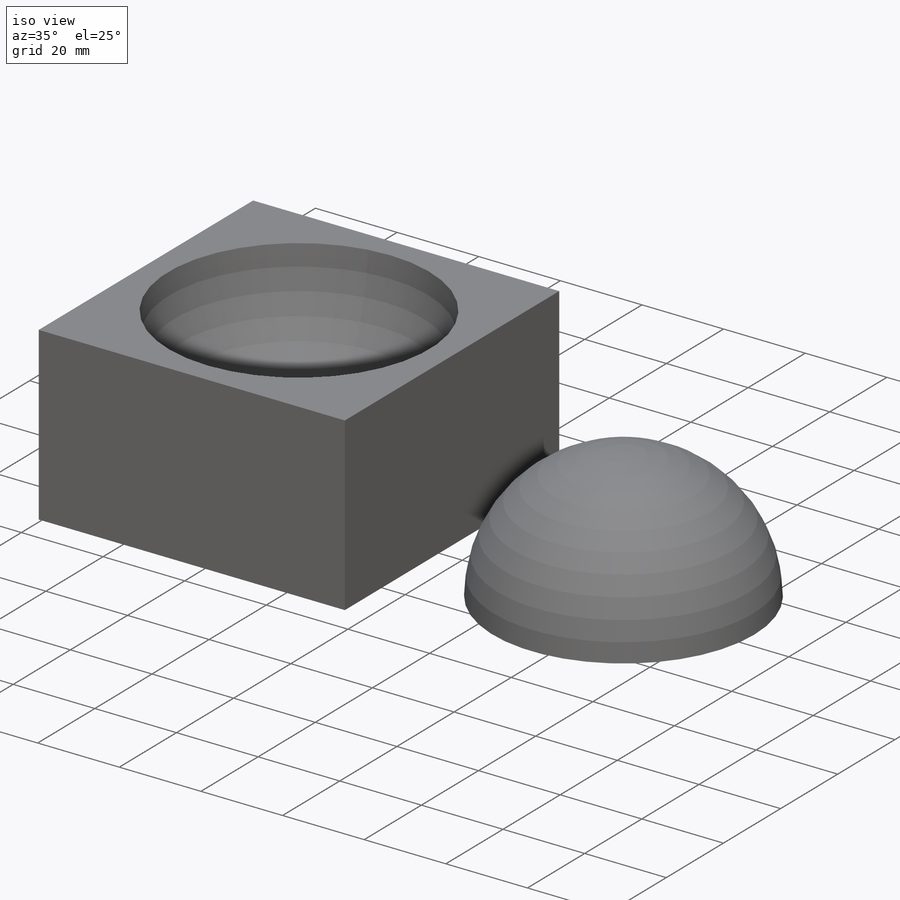
[diagram: iso view]
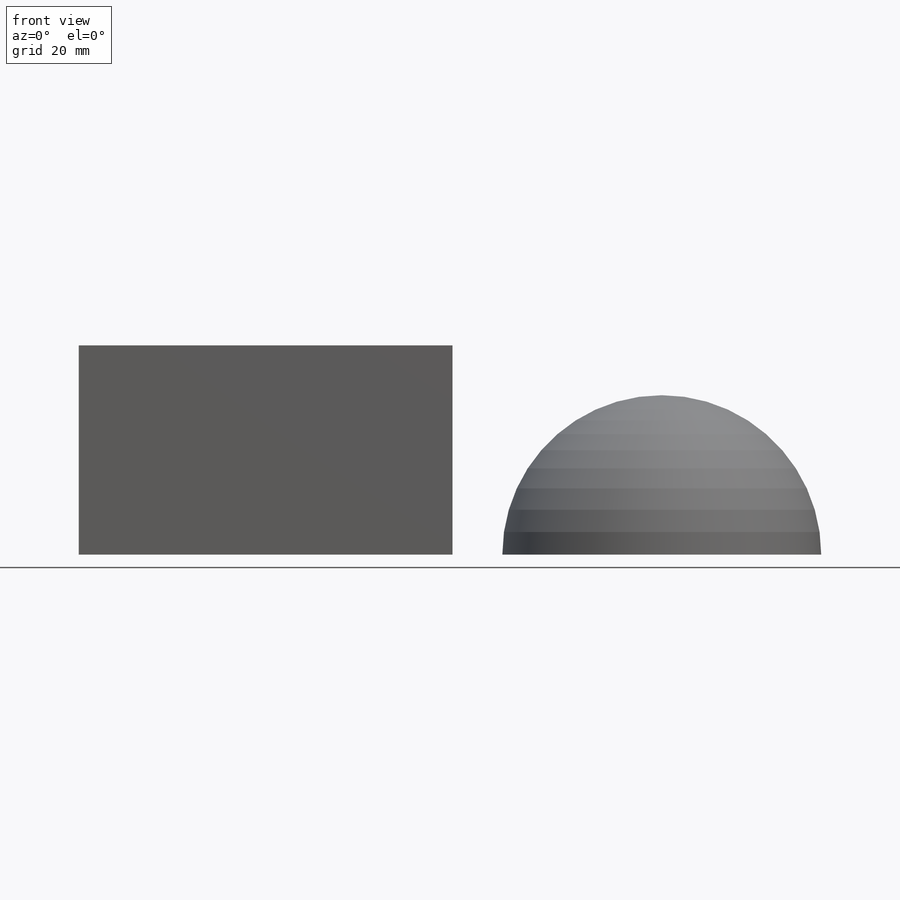
[diagram: front view]
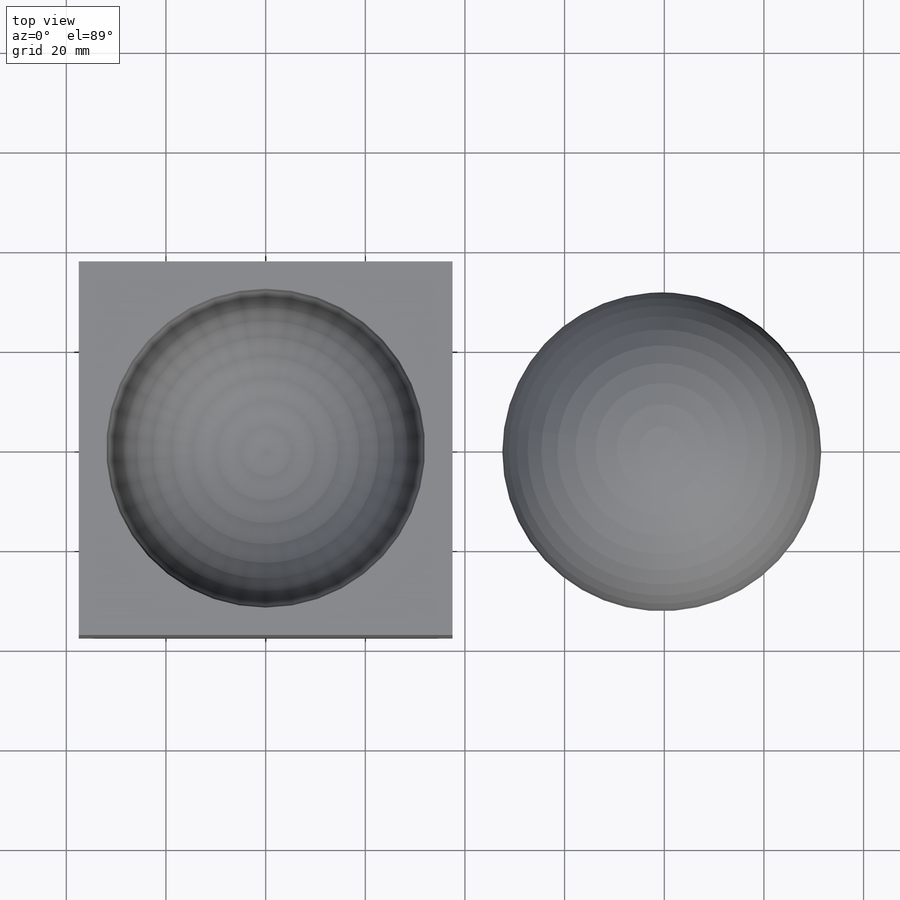
[diagram: top view]
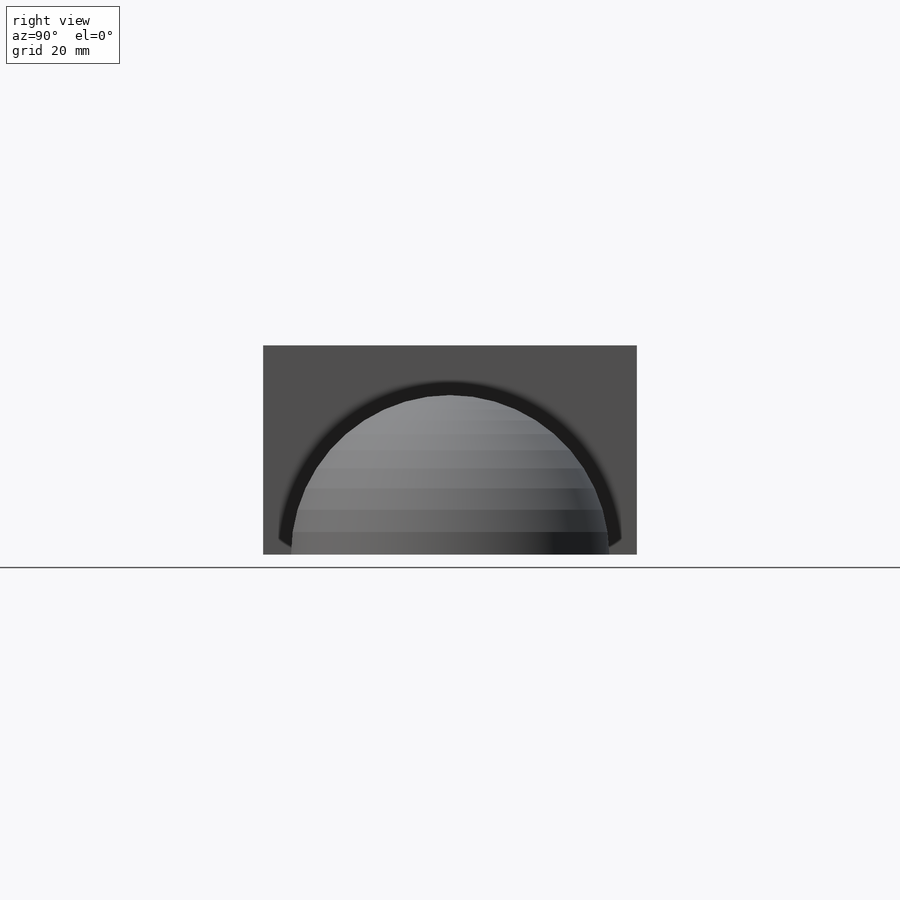
[diagram: right view]
SOLIDWORKS PART (.sldprt)
format: sldprt  version: not decoded by parser v0  size: 224,256 bytes
history: native  units: mm
features: sketch x4, material x1, extrude x1, cut_revolve x1, revolve x1 (+13 scaffold rows collapsed)
feature tree (21):
  scaffold x13  (default folders/planes/origin — collapsed)
  material  "Material <not specified>"
  sketch  "Sketch2"  dims[D1=75.0mm D2=75.0mm]
  extrude  "Boss-Extrude2"  Depth=42mm
  sketch  "Sketch4"  dims[D1=32.0mm D2=32.0mm]
  cut_revolve  "Cut-Revolve2"  Angle=360deg
  sketch  "Sketch5"  dims[D1=10.0mm]
  sketch  "Sketch6"  dims[D1=32.0mm D2=32.0mm]
  revolve  "Revolve1"  Angle=360deg
decode coverage: 7 of 7 modeling features carry decoded parameters
note: suppression state not decoded; provenance and decode notes live in map.json
